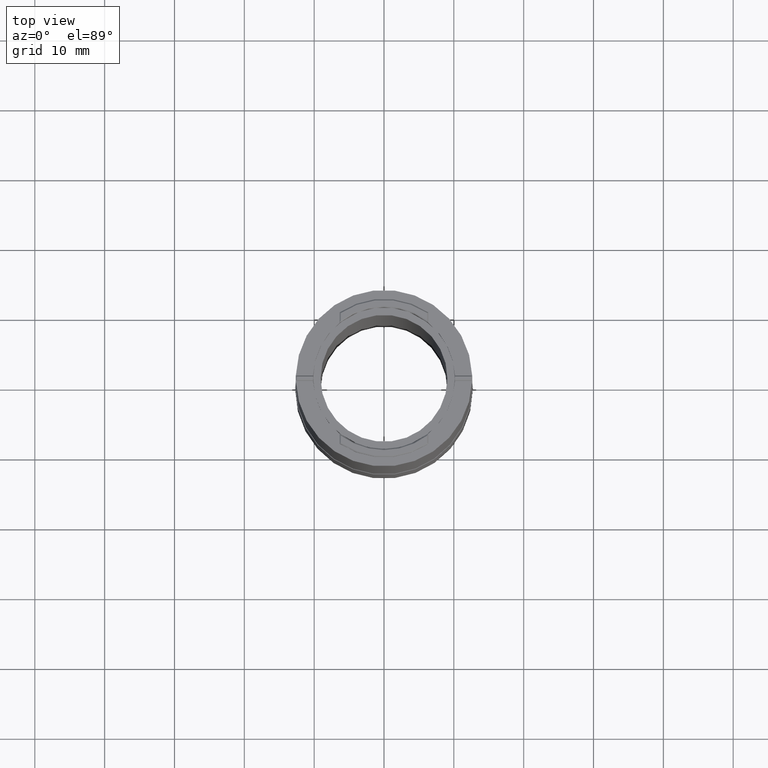
[diagram: clean part render]
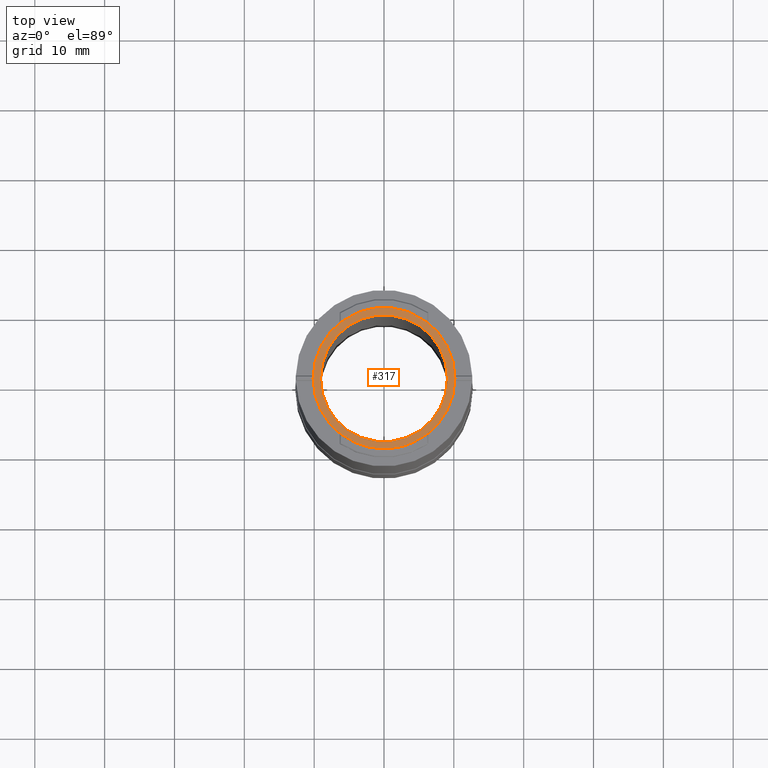
[diagram: same view with one face highlighted and labeled with its STEP entity id]
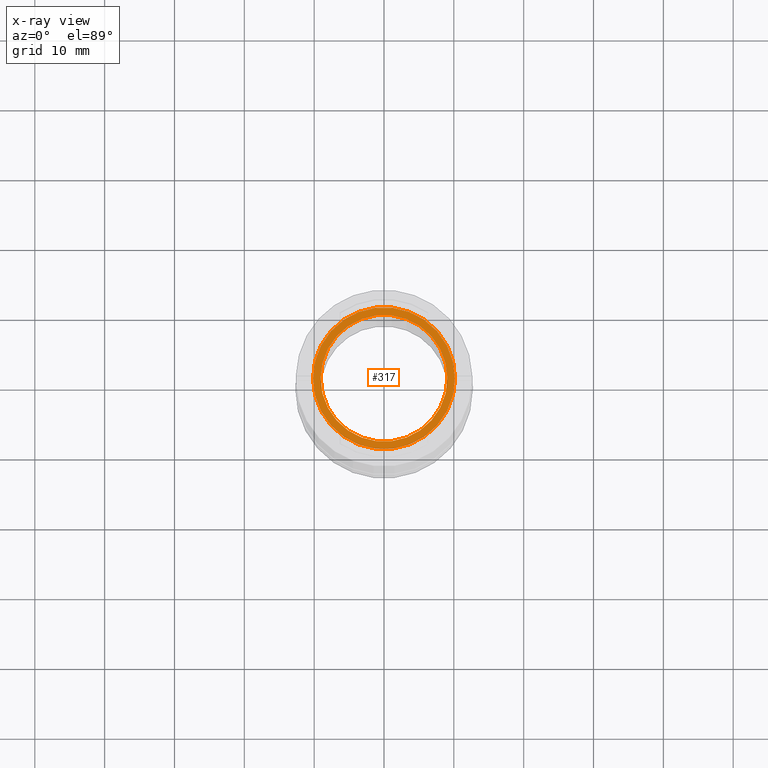
[diagram: x-ray of the same camera — body ghosted, the highlighted face saturated]
A machine part, top view. The second image highlights one B-rep face of the part: STEP entity #317.
The next image is the same camera in x-ray: the body ghosted, the highlighted face saturated — about 0% of this face is hidden behind the body in this view.
In plain terms, the highlighted planar face has unit normal (0, 0, 1).
Its self-contained STEP definition (entity closure, byte-faithful):
#39 = AXIS2_PLACEMENT_3D ( 'NONE', #783, #476, #1195 ) ;
#121 = AXIS2_PLACEMENT_3D ( 'NONE', #305, #1202, #1499 ) ;
#151 = AXIS2_PLACEMENT_3D ( 'NONE', #1685, #1831, #1662 ) ;
#155 = VERTEX_POINT ( 'NONE', #581 ) ;
#176 = PLANE ( 'NONE',  #121 ) ;
#292 = FACE_OUTER_BOUND ( 'NONE', #1798, .T. ) ;
#298 = EDGE_CURVE ( 'NONE', #155, #484, #1469, .T. ) ;
#305 = CARTESIAN_POINT ( 'NONE',  ( 0.000000000000000000, 0.000000000000000000, 95.89000000000000057 ) ) ;
#317 = ADVANCED_FACE ( 'NONE', ( #682, #292 ), #176, .T. ) ;
#322 = AXIS2_PLACEMENT_3D ( 'NONE', #1922, #1621, #1782 ) ;
#387 = CIRCLE ( 'NONE', #39, 10.16000000000000014 ) ;
#452 = CARTESIAN_POINT ( 'NONE',  ( -10.16000000000000014, 1.244241147933710864E-15, 95.89000000000000057 ) ) ;
#476 = DIRECTION ( 'NONE',  ( 0.000000000000000000, 0.000000000000000000, 1.000000000000000000 ) ) ;
#484 = VERTEX_POINT ( 'NONE', #525 ) ;
#519 = CARTESIAN_POINT ( 'NONE',  ( 10.16000000000000014, 0.000000000000000000, 95.89000000000000057 ) ) ;
#525 = CARTESIAN_POINT ( 'NONE',  ( 9.080499999999998906, 1.112040525965753818E-15, 95.89000000000000057 ) ) ;
#581 = CARTESIAN_POINT ( 'NONE',  ( -9.080499999999998906, 0.000000000000000000, 95.89000000000000057 ) ) ;
#596 = ORIENTED_EDGE ( 'NONE', *, *, #823, .F. ) ;
#682 = FACE_BOUND ( 'NONE', #867, .T. ) ;
#705 = ORIENTED_EDGE ( 'NONE', *, *, #1878, .T. ) ;
#727 = ORIENTED_EDGE ( 'NONE', *, *, #1471, .T. ) ;
#734 = DIRECTION ( 'NONE',  ( 1.000000000000000000, 0.000000000000000000, 0.000000000000000000 ) ) ;
#783 = CARTESIAN_POINT ( 'NONE',  ( 0.000000000000000000, 0.000000000000000000, 95.89000000000000057 ) ) ;
#823 = EDGE_CURVE ( 'NONE', #484, #155, #883, .T. ) ;
#867 = EDGE_LOOP ( 'NONE', ( #1502, #596 ) ) ;
#883 = CIRCLE ( 'NONE', #942, 9.080499999999998906 ) ;
#942 = AXIS2_PLACEMENT_3D ( 'NONE', #1613, #1772, #734 ) ;
#1195 = DIRECTION ( 'NONE',  ( 1.000000000000000000, 0.000000000000000000, 0.000000000000000000 ) ) ;
#1202 = DIRECTION ( 'NONE',  ( 0.000000000000000000, 0.000000000000000000, 1.000000000000000000 ) ) ;
#1388 = VERTEX_POINT ( 'NONE', #452 ) ;
#1469 = CIRCLE ( 'NONE', #322, 9.080499999999998906 ) ;
#1471 = EDGE_CURVE ( 'NONE', #1565, #1388, #1537, .T. ) ;
#1499 = DIRECTION ( 'NONE',  ( 1.000000000000000000, 0.000000000000000000, -0.000000000000000000 ) ) ;
#1502 = ORIENTED_EDGE ( 'NONE', *, *, #298, .F. ) ;
#1537 = CIRCLE ( 'NONE', #151, 10.16000000000000014 ) ;
#1565 = VERTEX_POINT ( 'NONE', #519 ) ;
#1613 = CARTESIAN_POINT ( 'NONE',  ( 0.000000000000000000, 0.000000000000000000, 95.89000000000000057 ) ) ;
#1621 = DIRECTION ( 'NONE',  ( 0.000000000000000000, 0.000000000000000000, 1.000000000000000000 ) ) ;
#1662 = DIRECTION ( 'NONE',  ( 1.000000000000000000, 0.000000000000000000, 0.000000000000000000 ) ) ;
#1685 = CARTESIAN_POINT ( 'NONE',  ( 0.000000000000000000, 0.000000000000000000, 95.89000000000000057 ) ) ;
#1772 = DIRECTION ( 'NONE',  ( 0.000000000000000000, 0.000000000000000000, 1.000000000000000000 ) ) ;
#1782 = DIRECTION ( 'NONE',  ( 1.000000000000000000, 0.000000000000000000, 0.000000000000000000 ) ) ;
#1798 = EDGE_LOOP ( 'NONE', ( #727, #705 ) ) ;
#1831 = DIRECTION ( 'NONE',  ( 0.000000000000000000, 0.000000000000000000, 1.000000000000000000 ) ) ;
#1878 = EDGE_CURVE ( 'NONE', #1388, #1565, #387, .T. ) ;
#1922 = CARTESIAN_POINT ( 'NONE',  ( 0.000000000000000000, 0.000000000000000000, 95.89000000000000057 ) ) ;